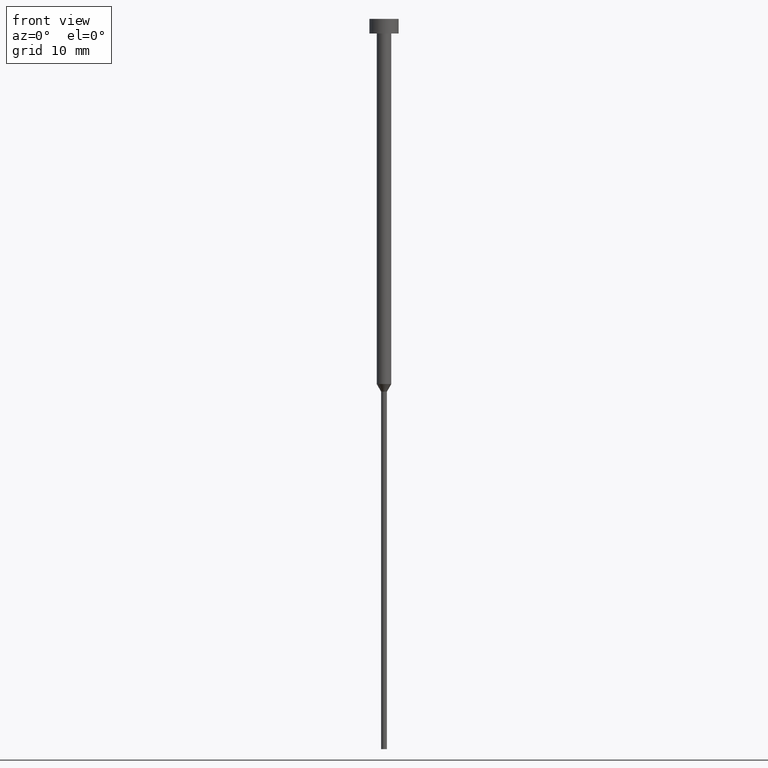
[diagram: clean part render]
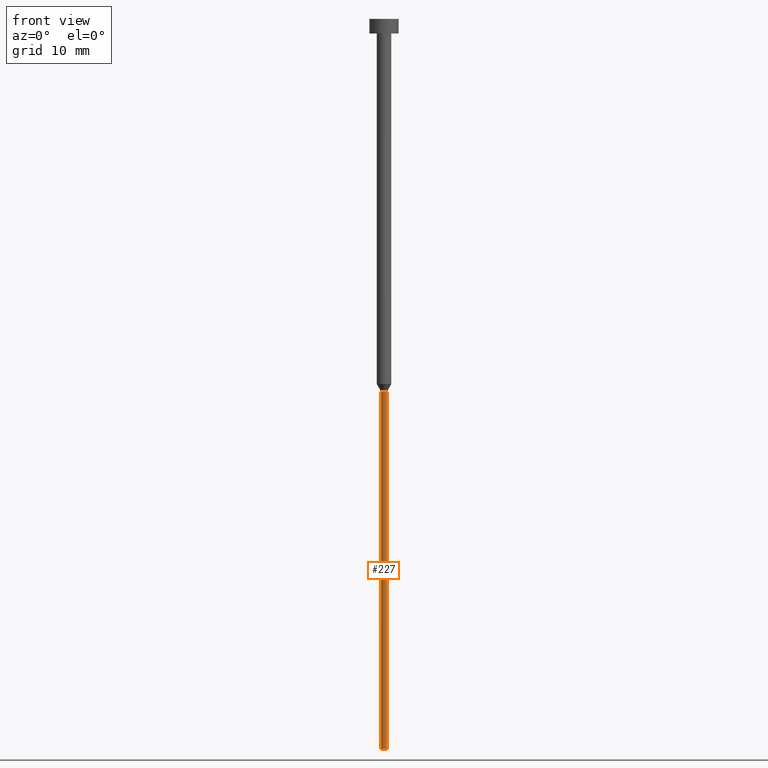
[diagram: same view with one face highlighted and labeled with its STEP entity id]
A machine part, front view. The second image highlights one B-rep face of the part: STEP entity #227.
In plain terms, the highlighted cylindrical surface (edge-blend (fillet) strip) has radius 0.4 mm, axis along (-0, -0, 1).
Its self-contained STEP definition (entity closure, byte-faithful):
#16 = DIRECTION ( 'NONE',  ( 1.000000000000000000, 0.000000000000000000, 0.000000000000000000 ) ) ;
#18 = EDGE_LOOP ( 'NONE', ( #24, #126, #251, #349 ) ) ;
#24 = ORIENTED_EDGE ( 'NONE', *, *, #247, .F. ) ;
#35 = CIRCLE ( 'NONE', #298, 0.3999999999999999667 ) ;
#56 = CIRCLE ( 'NONE', #318, 0.4000000000000000222 ) ;
#64 = DIRECTION ( 'NONE',  ( -0.000000000000000000, -0.000000000000000000, 1.000000000000000000 ) ) ;
#82 = CARTESIAN_POINT ( 'NONE',  ( -0.3999999999999999667, 4.898587196589412459E-17, -51.03923048454132783 ) ) ;
#84 = DIRECTION ( 'NONE',  ( 1.000000000000000000, 0.000000000000000000, 0.000000000000000000 ) ) ;
#87 = VECTOR ( 'NONE', #64, 1000.000000000000000 ) ;
#102 = CYLINDRICAL_SURFACE ( 'NONE', #208, 0.3999999999999999667 ) ;
#104 = VERTEX_POINT ( 'NONE', #303 ) ;
#108 = VERTEX_POINT ( 'NONE', #82 ) ;
#117 = CARTESIAN_POINT ( 'NONE',  ( -0.4000000000000000777, 4.898587196589413692E-17, -100.0000000000000000 ) ) ;
#119 = CARTESIAN_POINT ( 'NONE',  ( 0.000000000000000000, 0.000000000000000000, -100.0000000000000000 ) ) ;
#126 = ORIENTED_EDGE ( 'NONE', *, *, #177, .T. ) ;
#169 = DIRECTION ( 'NONE',  ( -0.000000000000000000, -0.000000000000000000, 1.000000000000000000 ) ) ;
#177 = EDGE_CURVE ( 'NONE', #292, #244, #56, .T. ) ;
#181 = LINE ( 'NONE', #293, #287 ) ;
#199 = FACE_OUTER_BOUND ( 'NONE', #18, .T. ) ;
#208 = AXIS2_PLACEMENT_3D ( 'NONE', #231, #285, #16 ) ;
#210 = CARTESIAN_POINT ( 'NONE',  ( 0.4000000000000000222, 0.000000000000000000, -100.0000000000000000 ) ) ;
#227 = ADVANCED_FACE ( 'NONE', ( #199 ), #102, .T. ) ;
#229 = DIRECTION ( 'NONE',  ( -0.000000000000000000, -0.000000000000000000, 1.000000000000000000 ) ) ;
#230 = DIRECTION ( 'NONE',  ( 1.000000000000000000, 0.000000000000000000, 0.000000000000000000 ) ) ;
#231 = CARTESIAN_POINT ( 'NONE',  ( 0.000000000000000000, 0.000000000000000000, 0.000000000000000000 ) ) ;
#236 = CARTESIAN_POINT ( 'NONE',  ( 0.3999999999999999667, 0.000000000000000000, 0.000000000000000000 ) ) ;
#244 = VERTEX_POINT ( 'NONE', #210 ) ;
#247 = EDGE_CURVE ( 'NONE', #292, #108, #181, .T. ) ;
#251 = ORIENTED_EDGE ( 'NONE', *, *, #255, .T. ) ;
#255 = EDGE_CURVE ( 'NONE', #244, #104, #344, .T. ) ;
#270 = CARTESIAN_POINT ( 'NONE',  ( 0.000000000000000000, 0.000000000000000000, -51.03923048454132783 ) ) ;
#285 = DIRECTION ( 'NONE',  ( -0.000000000000000000, -0.000000000000000000, 1.000000000000000000 ) ) ;
#287 = VECTOR ( 'NONE', #229, 1000.000000000000000 ) ;
#292 = VERTEX_POINT ( 'NONE', #117 ) ;
#293 = CARTESIAN_POINT ( 'NONE',  ( -0.3999999999999999667, 4.898587196589412459E-17, 0.000000000000000000 ) ) ;
#298 = AXIS2_PLACEMENT_3D ( 'NONE', #270, #327, #84 ) ;
#303 = CARTESIAN_POINT ( 'NONE',  ( 0.3999999999999999667, 0.000000000000000000, -51.03923048454132783 ) ) ;
#318 = AXIS2_PLACEMENT_3D ( 'NONE', #119, #169, #230 ) ;
#327 = DIRECTION ( 'NONE',  ( -0.000000000000000000, -0.000000000000000000, 1.000000000000000000 ) ) ;
#335 = EDGE_CURVE ( 'NONE', #108, #104, #35, .T. ) ;
#344 = LINE ( 'NONE', #236, #87 ) ;
#349 = ORIENTED_EDGE ( 'NONE', *, *, #335, .F. ) ;